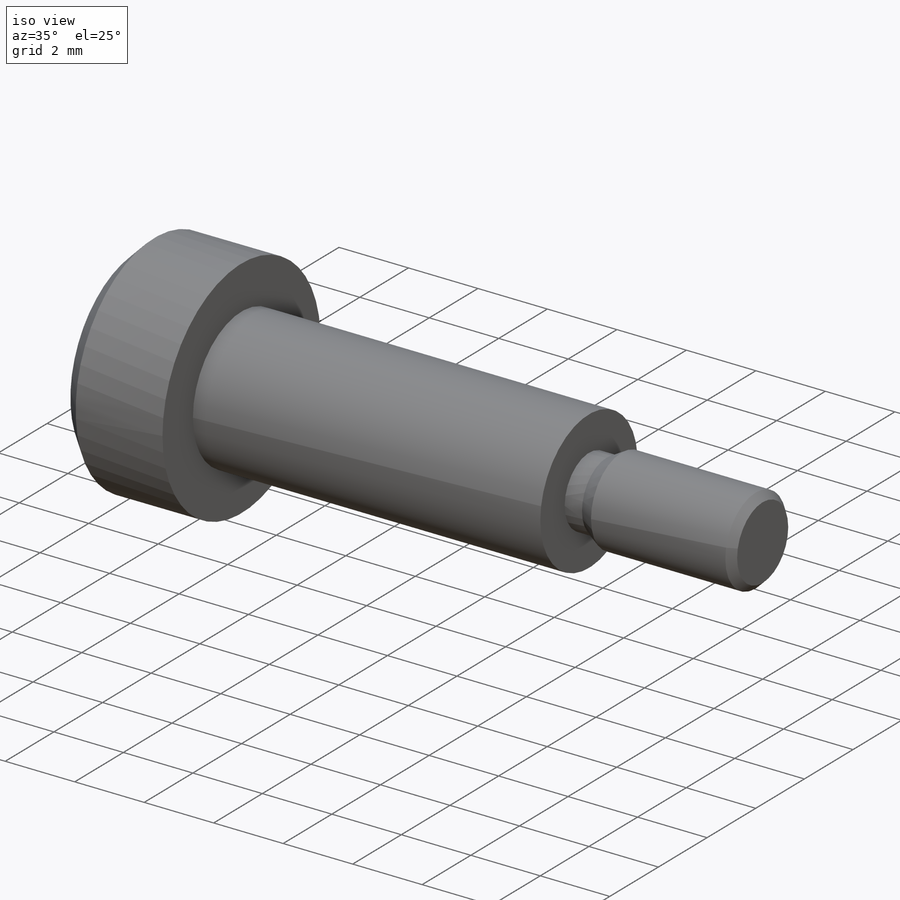
[diagram: iso view]
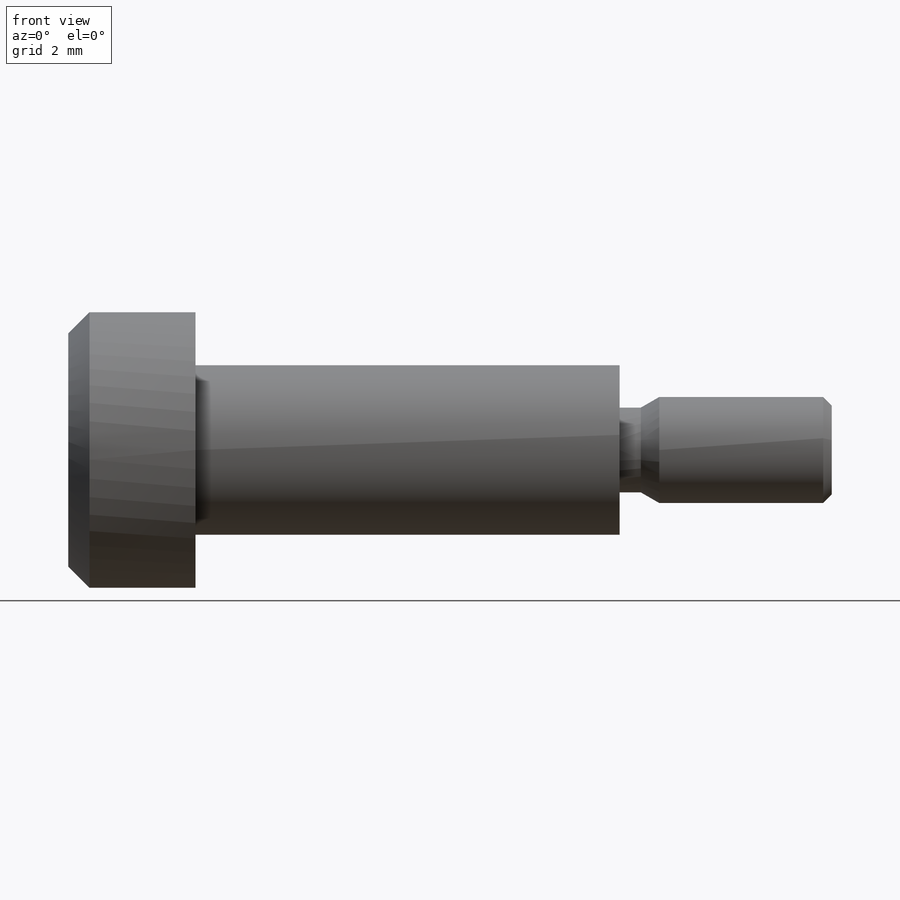
[diagram: front view]
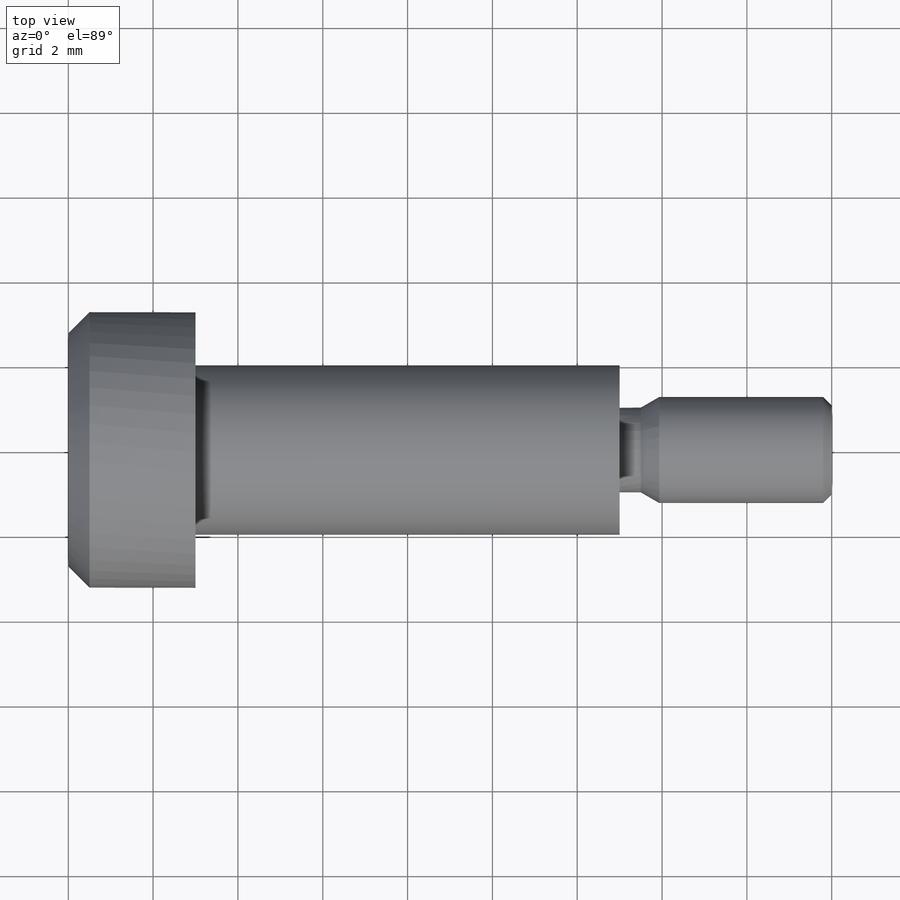
[diagram: top view]
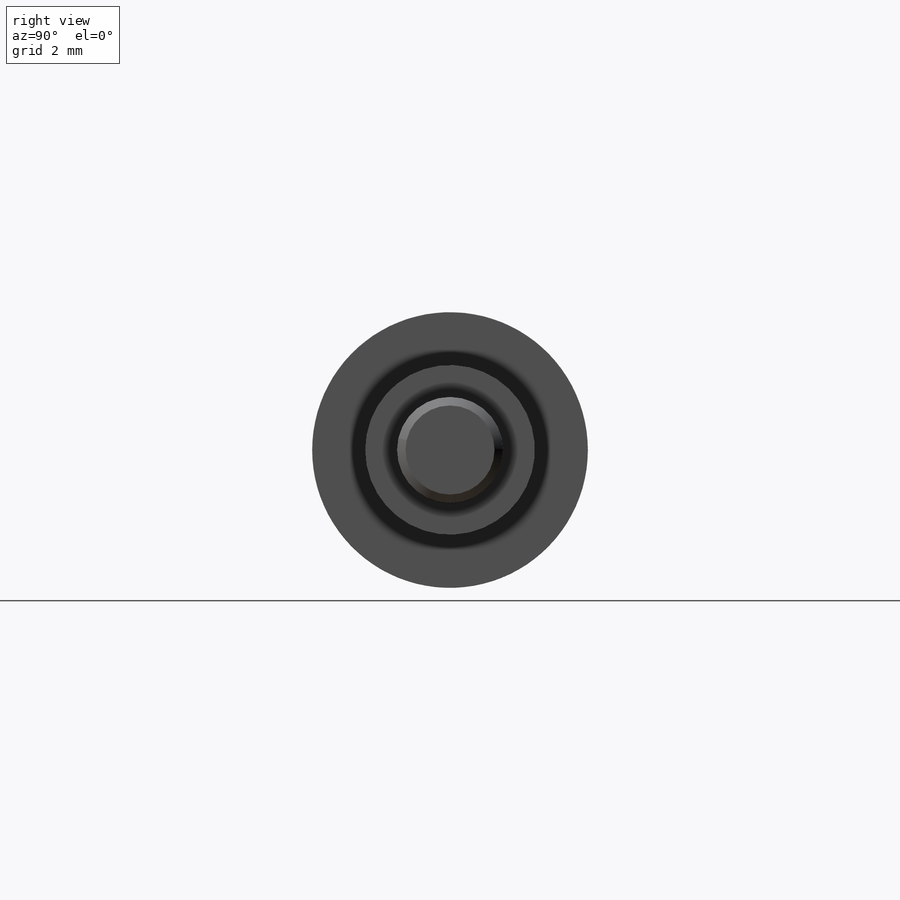
[diagram: right view]
SOLIDWORKS PART (.sldprt)
format: sldprt  version: not decoded by parser v0  size: 221,696 bytes
history: native  units: mm
features: plane x3, sketch x2, chamfer x2, material x1, revolve x1, cut_revolve x1, move_body x1 (+9 scaffold rows collapsed; 1 parser-record rows omitted)
feature tree (21):
  scaffold x9  (default folders/planes/origin — collapsed)
  material  "Material <nicht festgelegt>"
  plane  "Vorne"
  plane  "Oben"
  plane  "Rechts"
  sketch  "Skizze1"  dims[D1=2.5mm D2=4.0mm D3=6.5mm D4=3.0mm D5=10.0mm D6=5.0mm]
  revolve  "Rotation1"  Angle=360deg
  chamfer  "Fase1"  Distance=0.5mm Angle=45deg
  chamfer  "Fase2"  Distance=0.2mm Angle=45deg
  sketch  "Skizze2"  dims[c1.D1=2.0mm c1.D2=2.0mm c2.D2=30.0deg c2.D3=0.5mm]
  cut_revolve  "Schnitt-Rotation1"  Angle=360deg
  parser-record x1  (decoder bookkeeping rows leaked as tree rows — omitted from the tree; the rows remain in map.json)
  move_body  "Körper-Verschieben/Kopieren1"
decode coverage: 6 of 7 modeling features carry decoded parameters
note: suppression state not decoded; provenance and decode notes live in map.json
